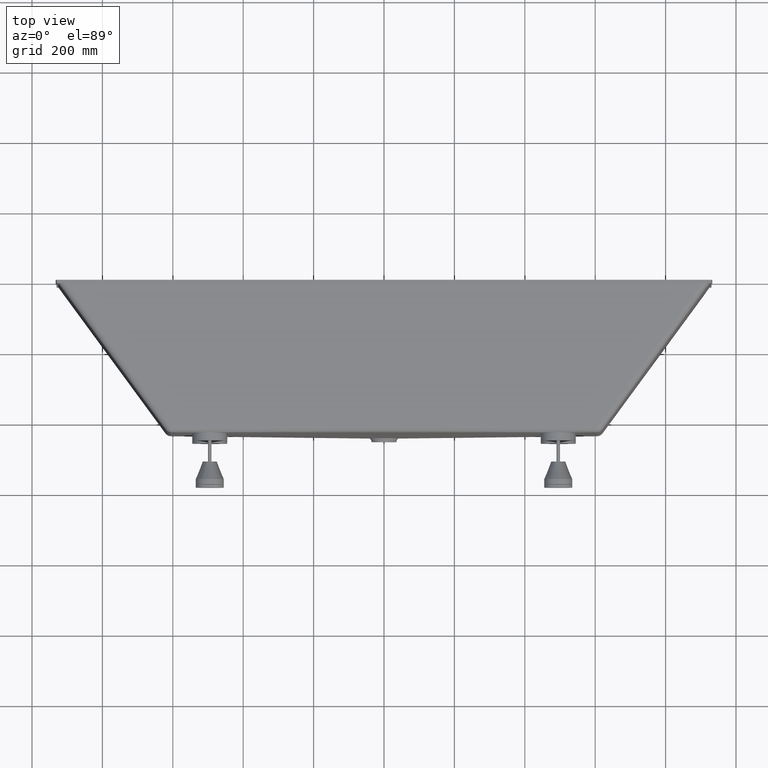
[diagram: clean part render]
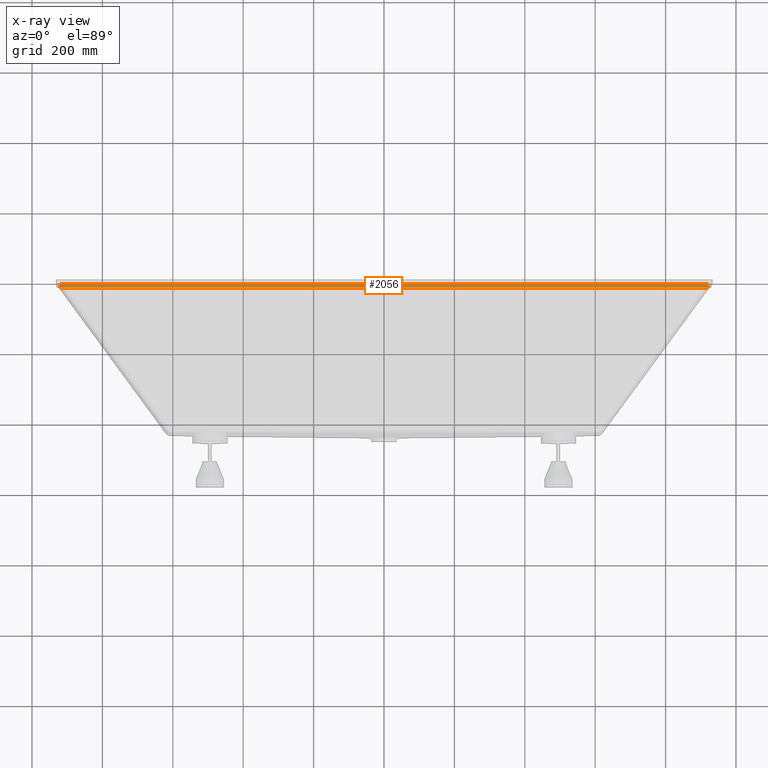
[diagram: x-ray — body ghosted, one internal face saturated and labeled with its STEP entity id]
A machine part, top view, then the same camera in x-ray: the body is ghosted and one INTERNAL B-rep face — a face not visible from any outside direction — is saturated and labeled: STEP entity #2056.
In plain terms, the highlighted planar face has unit normal (0, 0, -1).
Its self-contained STEP definition (entity closure, byte-faithful):
#119 = VERTEX_POINT ( 'NONE', #5365 ) ;
#194 = CARTESIAN_POINT ( 'NONE',  ( -919.9999999999997700, -10.00000000000000000, -344.9999999999999400 ) ) ;
#247 = DIRECTION ( 'NONE',  ( 0.0000000000000000000, 1.000000000000000000, 0.0000000000000000000 ) ) ;
#684 = AXIS2_PLACEMENT_3D ( 'NONE', #4387, #4359, #4350 ) ;
#831 = ORIENTED_EDGE ( 'NONE', *, *, #3462, .F. ) ;
#1312 = ORIENTED_EDGE ( 'NONE', *, *, #1630, .T. ) ;
#1452 = LINE ( 'NONE', #6688, #7402 ) ;
#1630 = EDGE_CURVE ( 'NONE', #3470, #3130, #1452, .T. ) ;
#2056 = ADVANCED_FACE ( 'NONE', ( #7501 ), #5533, .F. ) ;
#3020 = DIRECTION ( 'NONE',  ( -1.000000000000000000, -0.0000000000000000000, -0.0000000000000000000 ) ) ;
#3046 = CARTESIAN_POINT ( 'NONE',  ( -919.9999999999997700, -10.00000000000000000, -344.9999999999999400 ) ) ;
#3130 = VERTEX_POINT ( 'NONE', #6589 ) ;
#3462 = EDGE_CURVE ( 'NONE', #119, #3974, #4215, .T. ) ;
#3470 = VERTEX_POINT ( 'NONE', #4226 ) ;
#3606 = VECTOR ( 'NONE', #7376, 1000.000000000000000 ) ;
#3974 = VERTEX_POINT ( 'NONE', #8296 ) ;
#4215 = LINE ( 'NONE', #194, #6216 ) ;
#4226 = CARTESIAN_POINT ( 'NONE',  ( 920.0000000000000000, -10.00000000000000000, -344.9999999999999400 ) ) ;
#4322 = ORIENTED_EDGE ( 'NONE', *, *, #8932, .T. ) ;
#4350 = DIRECTION ( 'NONE',  ( -1.000000000000000000, 0.0000000000000000000, -0.0000000000000000000 ) ) ;
#4359 = DIRECTION ( 'NONE',  ( 0.0000000000000000000, 0.0000000000000000000, -1.000000000000000000 ) ) ;
#4387 = CARTESIAN_POINT ( 'NONE',  ( -919.9999999999997700, -10.00000000000000000, -344.9999999999999400 ) ) ;
#4533 = ORIENTED_EDGE ( 'NONE', *, *, #6598, .F. ) ;
#4894 = LINE ( 'NONE', #3046, #8675 ) ;
#5365 = CARTESIAN_POINT ( 'NONE',  ( -919.9999999999997700, -10.00000000000000000, -344.9999999999999400 ) ) ;
#5533 = PLANE ( 'NONE',  #684 ) ;
#5627 = LINE ( 'NONE', #7394, #3606 ) ;
#5874 = EDGE_LOOP ( 'NONE', ( #4322, #831, #4533, #1312 ) ) ;
#6216 = VECTOR ( 'NONE', #247, 1000.000000000000000 ) ;
#6589 = CARTESIAN_POINT ( 'NONE',  ( 920.0000000000000000, 0.0000000000000000000, -344.9999999999999400 ) ) ;
#6598 = EDGE_CURVE ( 'NONE', #3470, #119, #4894, .T. ) ;
#6688 = CARTESIAN_POINT ( 'NONE',  ( 920.0000000000000000, -10.00000000000000000, -344.9999999999999400 ) ) ;
#7045 = DIRECTION ( 'NONE',  ( 0.0000000000000000000, 1.000000000000000000, 0.0000000000000000000 ) ) ;
#7376 = DIRECTION ( 'NONE',  ( -1.000000000000000000, -0.0000000000000000000, -0.0000000000000000000 ) ) ;
#7394 = CARTESIAN_POINT ( 'NONE',  ( -919.9999999999997700, 0.0000000000000000000, -344.9999999999999400 ) ) ;
#7402 = VECTOR ( 'NONE', #7045, 1000.000000000000000 ) ;
#7501 = FACE_OUTER_BOUND ( 'NONE', #5874, .T. ) ;
#8296 = CARTESIAN_POINT ( 'NONE',  ( -919.9999999999997700, 0.0000000000000000000, -344.9999999999999400 ) ) ;
#8675 = VECTOR ( 'NONE', #3020, 1000.000000000000000 ) ;
#8932 = EDGE_CURVE ( 'NONE', #3130, #3974, #5627, .T. ) ;